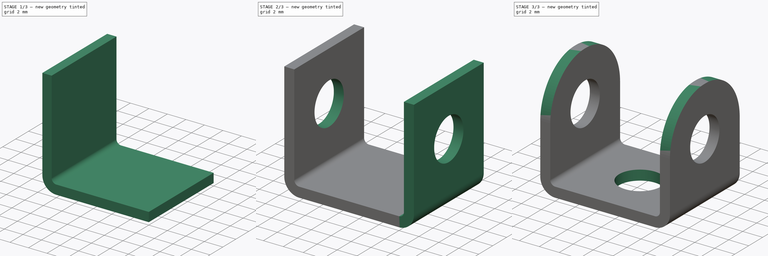
[diagram: build sequence overview — one tinted view per stage of 3, left to right]
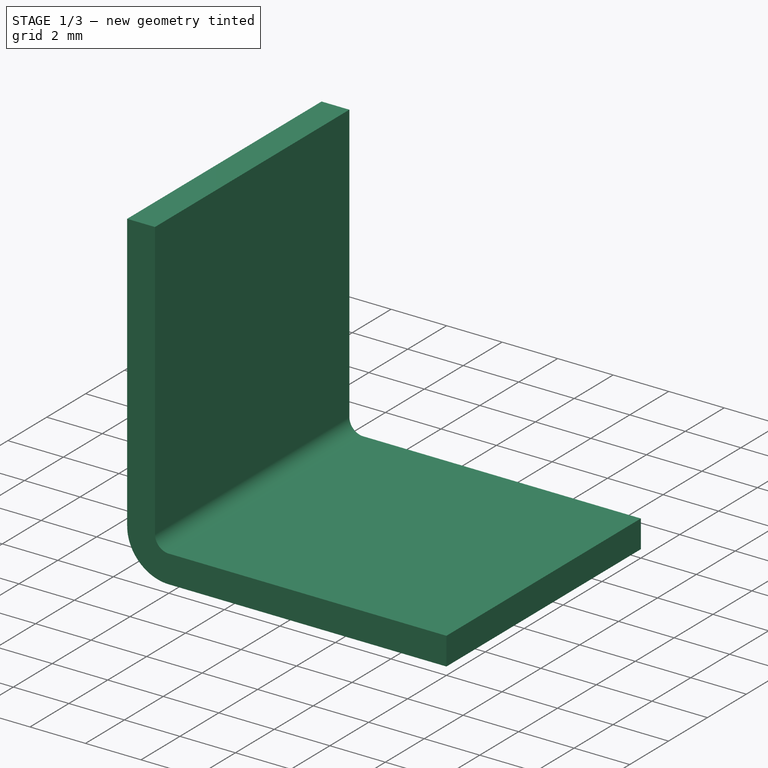
[diagram: stage 1 of 3 — iso view after this stage's code; geometry added in this stage tinted green]
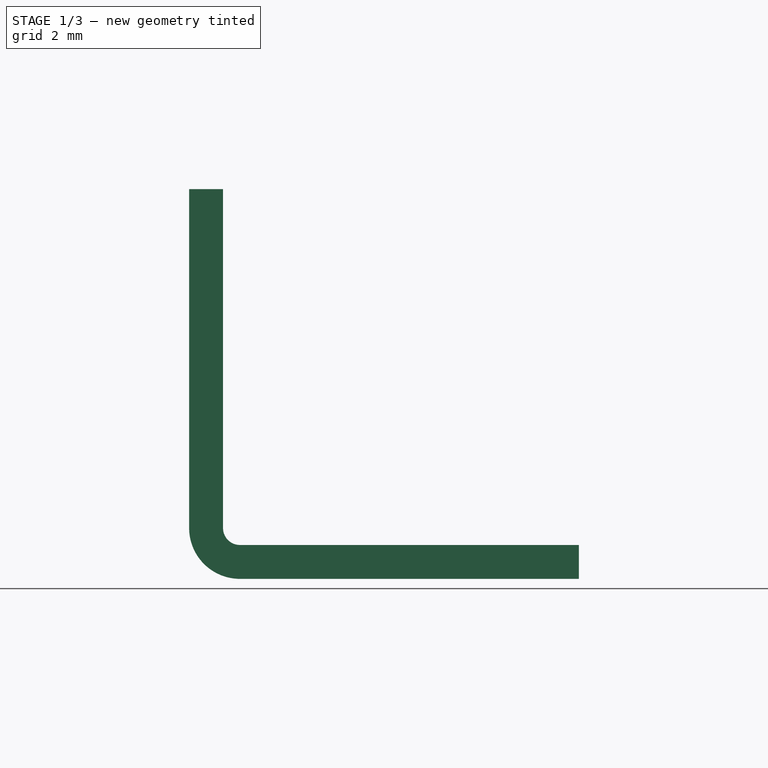
[diagram: stage 1 of 3 — front view after this stage's code; geometry added in this stage tinted green]
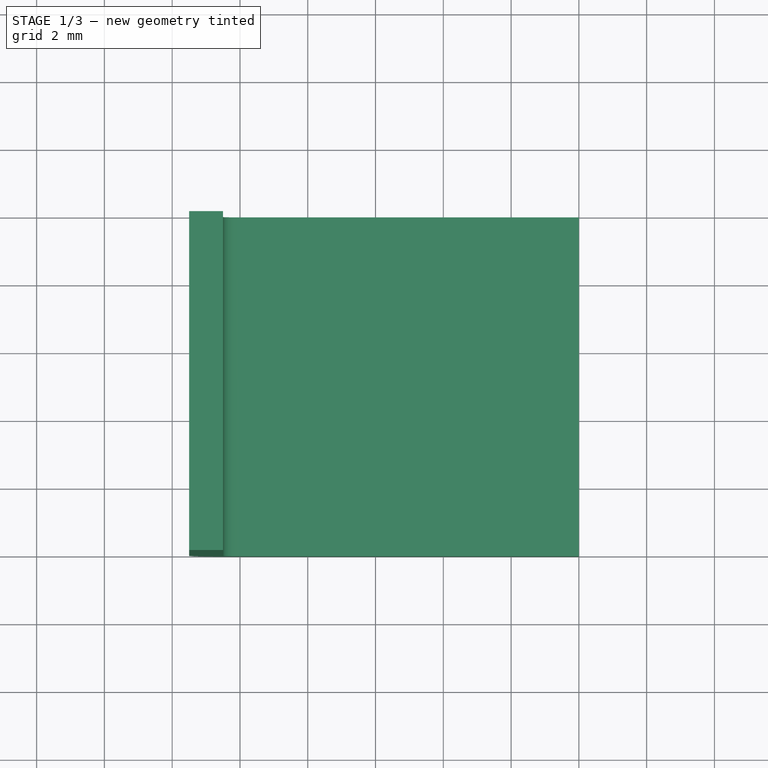
[diagram: stage 1 of 3 — top view after this stage's code; geometry added in this stage tinted green]
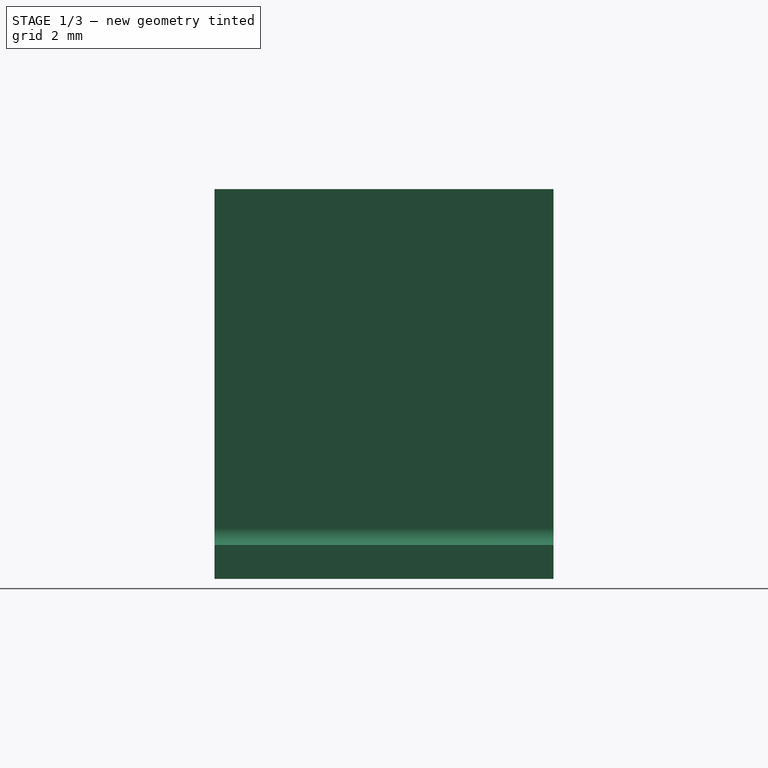
[diagram: stage 1 of 3 — right view after this stage's code; geometry added in this stage tinted green]
FCSTD DOCUMENT  (FreeCAD 0.16RUnknown)
Label: skoba_1_1_1_v2
License: All rights reserved
LicenseURL: http://en.wikipedia.org/wiki/All_rights_reserved
objects: Sketcher::SketchObject×3, Part::FeaturePython×2, PartDesign::Pocket×2, Drawing::FeatureViewPart×2, PartDesign::Pad×1, PartDesign::Fillet×1, Part::Feature×1, Drawing::FeaturePage×1
note: 13 computed .brp shape members not serialized (recipe doc carries the construction recipe); baked Part::Feature solids carry a one-line shape summary decoded from their .brp

FEATURE [Sketcher::SketchObject] Sketch
  sketch-geometry (4):
    g0: LineSegment StartX=0 StartY=10 StartZ=0 EndX=10 EndY=10 EndZ=0
    g1: LineSegment StartX=10 StartY=10 StartZ=0 EndX=10 EndY=0 EndZ=0
    g2: LineSegment StartX=10 StartY=0 StartZ=0 EndX=0 EndY=0 EndZ=0
    g3: LineSegment StartX=0 StartY=0 StartZ=0 EndX=0 EndY=10 EndZ=0
  constraints (11):
    c: Coincident(g0,g1)
    c: Coincident(g1,g2)
    c: Coincident(g2,g3)
    c: Coincident(g3,g0)
    c: Horizontal(g0)
    c: Horizontal(g2)
    c: Vertical(g1)
    c: Vertical(g3)
    c: DistanceX(g0,g0) = 10
    c: DistanceY(g3,g3) = 10
    c: Coincident(g2,g-1)
FEATURE [PartDesign::Pad] Pad
  Length = 1
  Length2 = 100
  Sketch = -> Sketch
  Type = 0
FEATURE [Part::FeaturePython] Bend  # WARN: FeaturePython — macro-defined, semantics opaque (R4)
  angle = 90
  baseObject = -> Pad [Face4]
  gap1 = 0
  gap2 = 0
  invert = false
  length = 10
  radius = 0.5
  reliefd = 1
  reliefw = 0.5
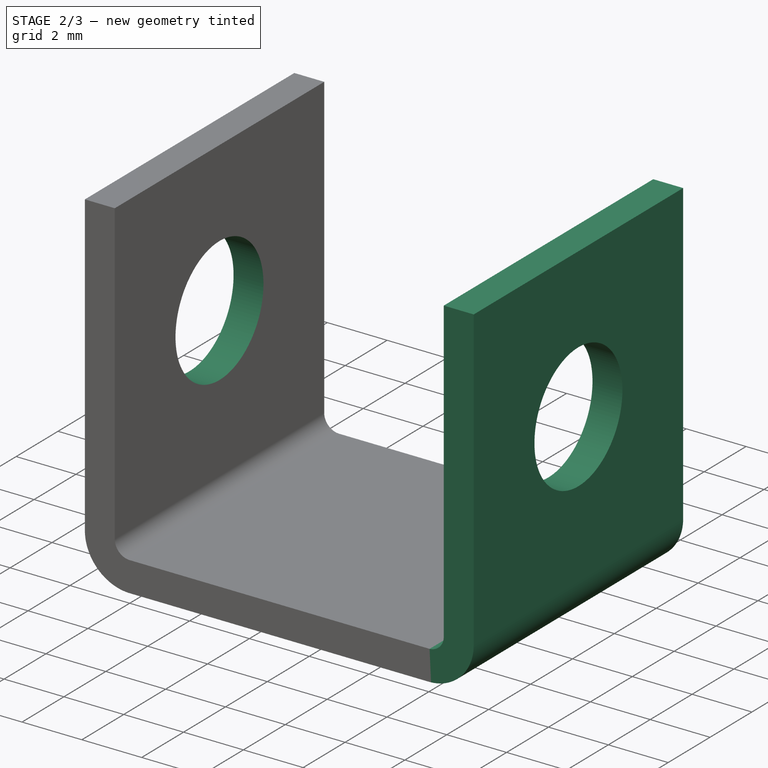
[diagram: stage 2 of 3 — iso view after this stage's code; geometry added in this stage tinted green]
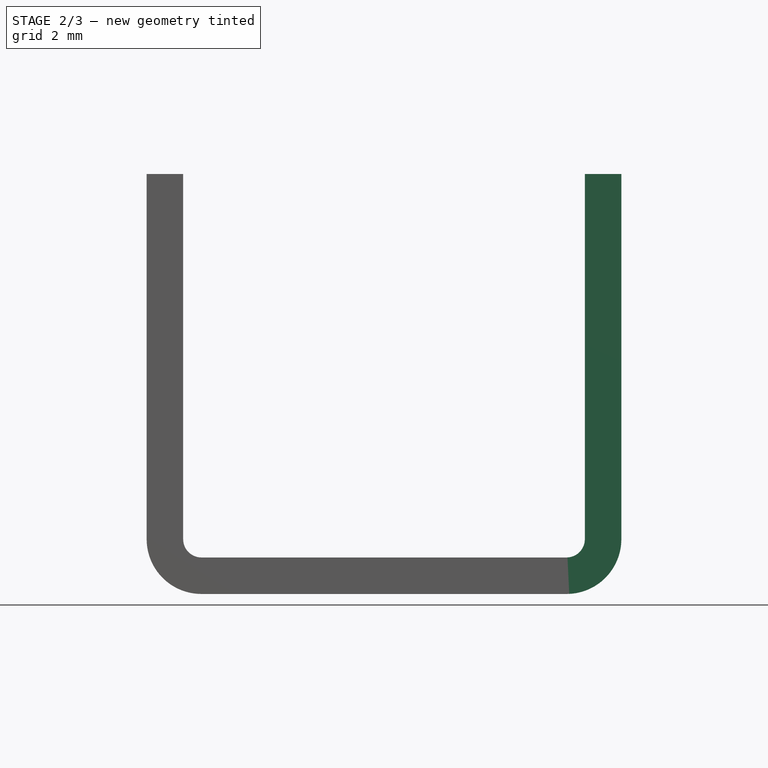
[diagram: stage 2 of 3 — front view after this stage's code; geometry added in this stage tinted green]
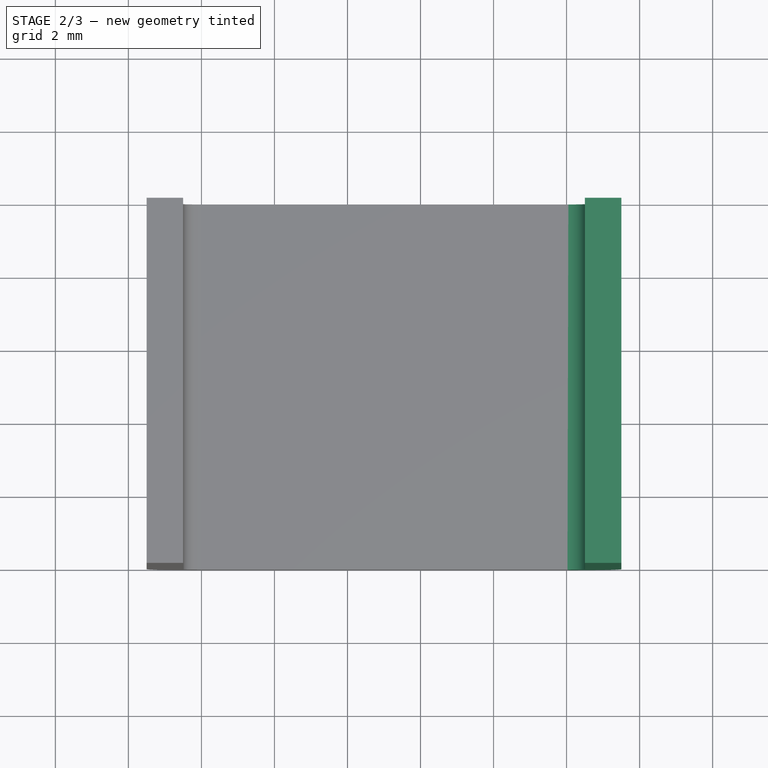
[diagram: stage 2 of 3 — top view after this stage's code; geometry added in this stage tinted green]
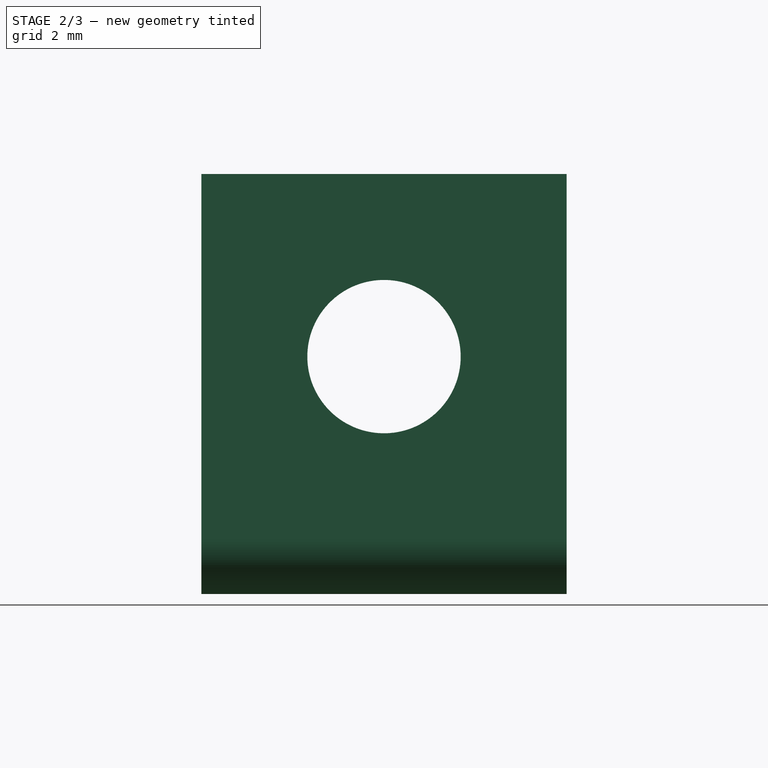
[diagram: stage 2 of 3 — right view after this stage's code; geometry added in this stage tinted green]
FEATURE [Part::FeaturePython] Bend001  # WARN: FeaturePython — macro-defined, semantics opaque (R4)
  angle = 90
  baseObject = -> Bend [Face14]
  gap1 = 0
  gap2 = 0
  invert = false
  length = 10
  radius = 0.5
  reliefd = 1
  reliefw = 0.5
FEATURE [Sketcher::SketchObject] Sketch001
  ExternalGeometry = -> [Bend001]
  Placement = pos=(-1.5,0,0) rot=(0.57735,-0.57735,-0.57735;2.0944rad)
  Support = -> Bend001 [Face20]
  sketch-geometry (1):
    g0: Circle CenterX=-5 CenterY=6.5 CenterZ=0 NormalX=0 NormalY=0 NormalZ=1 Radius=2.1
  constraints (3):
    c: Radius(g0) = 2.1
    c: DistanceY(g0,g-3) = 5
    c: DistanceX(g-3,g0) = 5
FEATURE [PartDesign::Pocket] Pocket
  Length = 5
  Sketch = -> Sketch001
  Type = 1
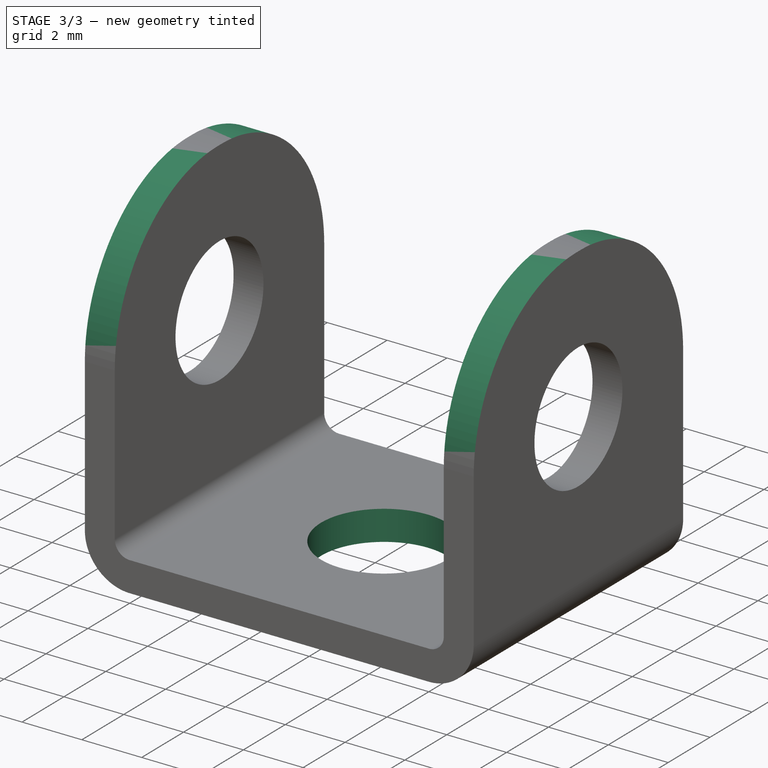
[diagram: stage 3 of 3 — iso view after this stage's code; geometry added in this stage tinted green]
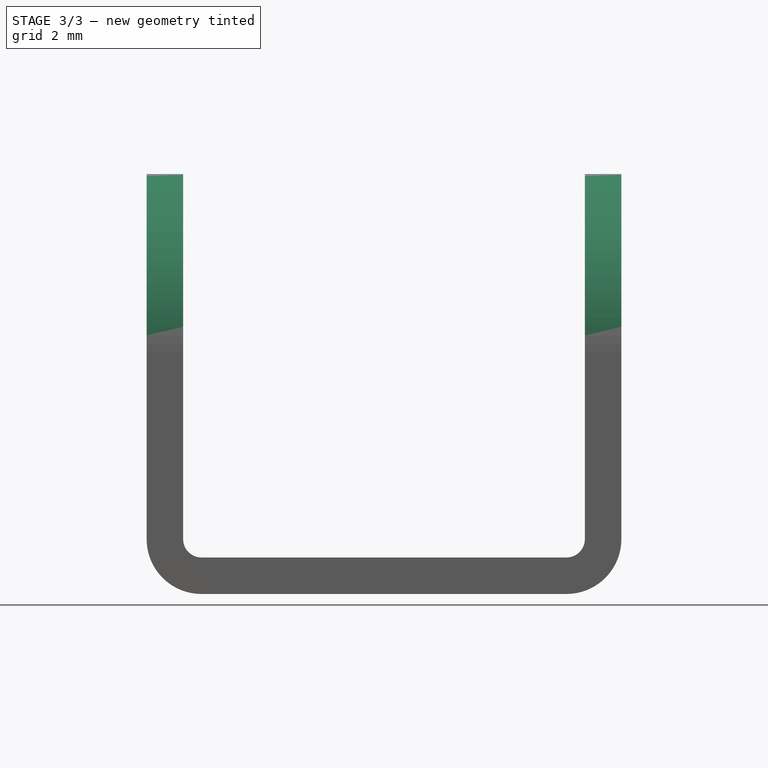
[diagram: stage 3 of 3 — front view after this stage's code; geometry added in this stage tinted green]
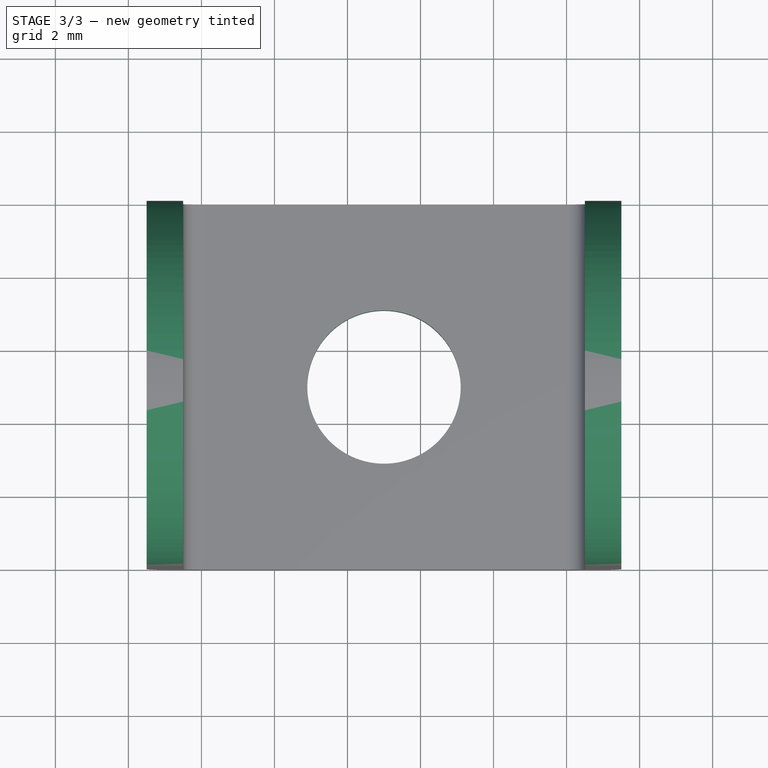
[diagram: stage 3 of 3 — top view after this stage's code; geometry added in this stage tinted green]
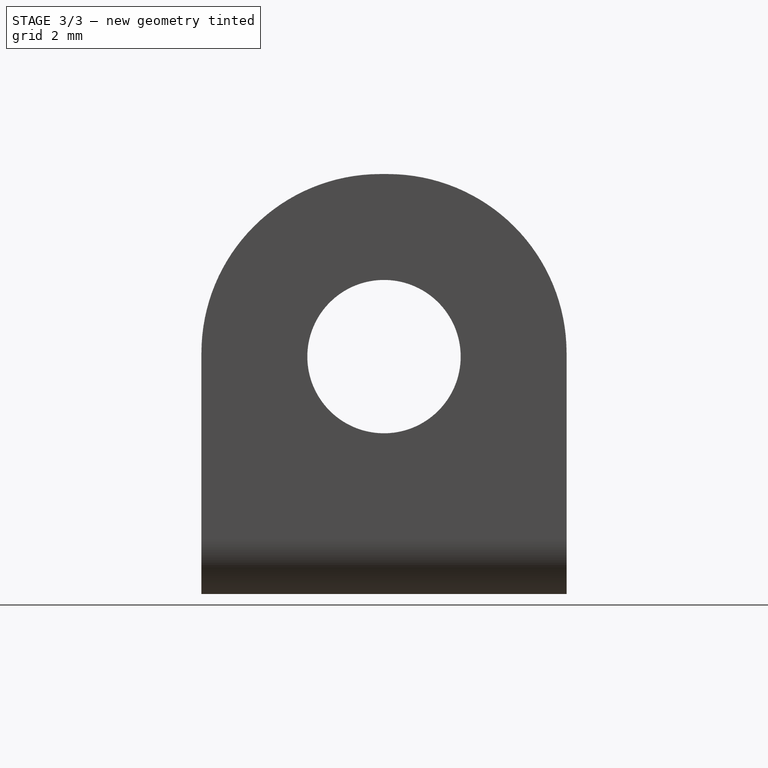
[diagram: stage 3 of 3 — right view after this stage's code; geometry added in this stage tinted green]
FEATURE [Sketcher::SketchObject] Sketch002
  Placement = pos=(0,0,0) rot=(1,0,0;3.14159rad)
  Support = -> Pocket [Face7]
  sketch-geometry (1):
    g0: Circle CenterX=5 CenterY=-5 CenterZ=0 NormalX=0 NormalY=0 NormalZ=1 Radius=2.1
  constraints (3):
    c: Radius(g0) = 2.1
    c: DistanceX(g-1,g0) = 5
    c: DistanceY(g0,g-1) = 5
FEATURE [PartDesign::Pocket] Pocket001
  Length = 5
  Sketch = -> Sketch002
  Type = 0
FEATURE [PartDesign::Fillet] Fillet
  Base = -> Pocket001 [Edge10,Edge22,Edge2,Edge1]
  Radius = 4.9
FEATURE [Part::Feature] Unfold
  shape: bbox 32.36 x 10 x 1 mm, 29 faces (baked)
FEATURE [Drawing::FeatureViewPart] Ortho  label="Ortho_0_0"
  Direction = (1,0,0)
  HiddenWidth = 0.15
  LineWidth = 0.35
  Rotation = -90
  ShowHiddenLines = false
  ShowSmoothLines = false
  Source = -> Unfold
  Tolerance = 0.05
  ViewResult = <g id="Ortho_0_0"\n   transform="rotate(-90,143.5,534.054) translate(143.5,534.054) scale(1,1)"\n  >\n<g   stroke="rgb(0, 0, 0)"\n   stroke-width="0.35"\n   stroke-linecap="butt"\n   stroke-linejoin="miter"\n   fill="none"\n   transform="scale(1,-1)"\n  >\n<path d="M1,-5.1 L1,-5.64863  L1,-6.19035  L1,-6.71837  L1,-7.22603  L1,-7.70696  L1,-8.1551  L1,-8.56482  L1,-8.93097  L1,-9.24895  L1,-9.51475  L1,-9.72503  L1,-9.87715  L1,-9.96919  L1,-10 " /><path id= "2" d=" M 1 -5.1 L 1 -4.9 " />\n<path d="M1,-4.9 L1,-4.35137  L1,-3.80965  L1,-3.28163  L1,-2.77397  L1,-2.29304  L1,-1.8449  L1,-1.43518  L1,-1.06903  L1,-0.751051  L1,-0.485253  L1,-0.274972  L1,-0.122853  L1,-0.0308102  L1,8.88178e-16 " /><path d="M1,-4.9 L1,-4.91428  L1,-4.92856  L1,-4.94284  L1,-4.95713  L1,-4.97142  L1,-4.98571  L1,-5  L1,-5.01429  L1,-5.02858  L1,-5.04287  L1,-5.05716  L1,-5.07144  L1,-5.08572  L1,-5.1 " /><path id= "5" d=" M -5.66214e-16 -10 L 1 -10 " />\n<path d="M0,-5.1 L0,-5.64863  L0,-6.19035  L0,-6.71837  L0,-7.22603  L0,-7.70696  L0,-8.1551  L0,-8.56482  L0,-8.93097  L0,-9.24895  L0,-9.51475  L0,-9.72503  L0,-9.87715  L0,-9.96919  L0,-10 " /><path id= "7" d=" M 0 -5.1 L 0 -4.9 " />\n<path d="M0,-4.9 L0,-4.35137  L0,-3.80965  L0,-3.28163  L0,-2.77397  L0,-2.29304  L0,-1.8449  L0,-1.43518  L0,-1.06903  L0,-0.751051  L0,-0.485253  L0,-0.274972  L0,-0.122853  L0,-0.0308102  L0,8.88178e-16 " /><path id= "9" d=" M 0 -5.1 L 1 -5.1 " />\n<path id= "10" d=" M 0 -4.9 L 1 -4.9 " />\n<path id= "11" d=" M -5.66214e-16 8.88178e-16 L 1 8.88178e-16 " />\n</g>\n</g>
  Visible = true
  X = 143.5
  Y = 534.054
FEATURE [Drawing::FeatureViewPart] Ortho001  label="Ortho_0_1"
  Direction = (0,0,1)
  HiddenWidth = 0.15
  LineWidth = 0.35
  Rotation = 90
  ShowHiddenLines = false
  ShowSmoothLines = false
  Source = -> Unfold
  Tolerance = 0.05
  ViewResult = <g id="Ortho_0_1"\n   transform="rotate(90,143.5,100) translate(143.5,100) scale(1,1)"\n  >\n<g   stroke="rgb(0, 0, 0)"\n   stroke-width="0.35"\n   stroke-linecap="butt"\n   stroke-linejoin="miter"\n   fill="none"\n   transform="scale(1,-1)"\n  >\n<path id= "1" d=" M -1.17769 0 L -6.27769 0 " />\n<path d="M-6.27769 -8.88178e-16 A4.9 4.9 0 0 0 -11.1777 4.9" /><path id= "3" d=" M -1.17769 0 L -1.17769 10 " />\n<path id= "4" d=" M -11.1777 4.9 L -11.1777 5.1 " />\n<path id= "5" d=" M -1.17769 10 L -6.27769 10 " />\n<path d="M-6.27769 10 A4.9 4.9 0 0 1 -11.1777 5.1" /><circle cx ="-6.17769" cy ="5" r ="2.1" /><path id= "8" d=" M 0 0 L 0 10 " />\n<path id= "9" d=" M 0 0 L -1.17769 0 " />\n<path id= "10" d=" M 0 10 L -1.17769 10 " />\n<path id= "11" d=" M 0 10 L 0 0 " />\n<path id= "12" d=" M 0 10 L 10 10 " />\n<path id= "13" d=" M 10 10 L 10 0 " />\n<path id= "14" d=" M 10 0 L 0 0 " />\n<circle cx ="5" cy ="5" r ="2.1" /><path id= "16" d=" M 11.1777 10 L 16.2777 10 " />\n<path d="M21.1777 5.1 A4.9 4.9 0 0 1 16.2777 10" /><path id= "18" d=" M 11.1777 10 L 11.1777 0 " />\n<path id= "19" d=" M 21.1777 5.1 L 21.1777 4.9 " />\n<path id= "20" d=" M 11.1777 0 L 16.2777 0 " />\n<path d="M21.1777 4.9 A4.9 4.9 0 0 0 16.2777 -8.88178e-16" /><circle cx ="16.1777" cy ="5" r ="2.1" /><path id= "23" d=" M 10 10 L 11.1777 10 " />\n<path id= "24" d=" M 10 0 L 11.1777 0 " />\n</g>\n</g>
  Visible = true
  X = 143.5
  Y = 100
FEATURE [Drawing::FeaturePage] Page
  Group = -> [Ortho,Ortho001]
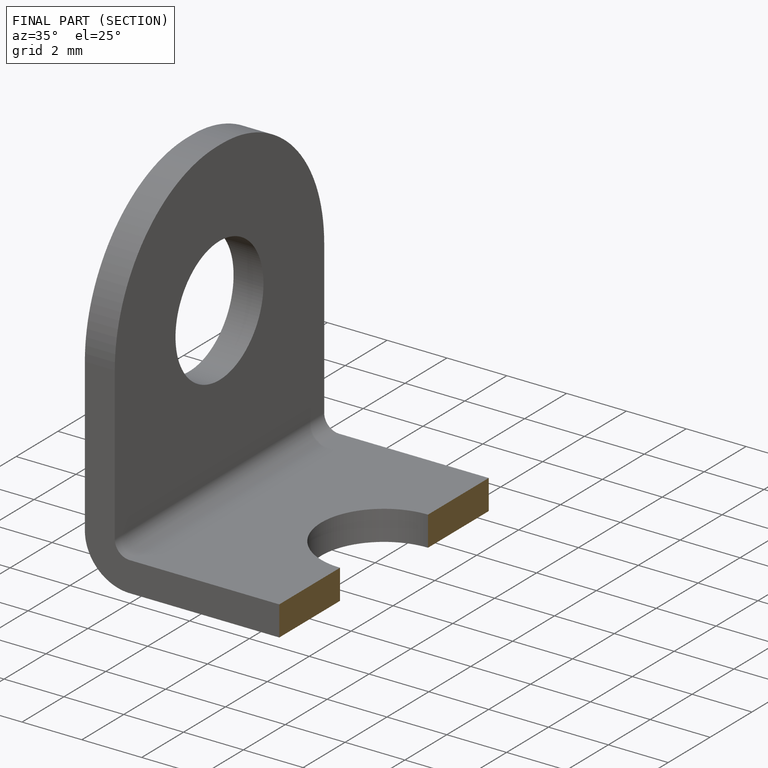
[diagram: finished part — half-section view (interior)]
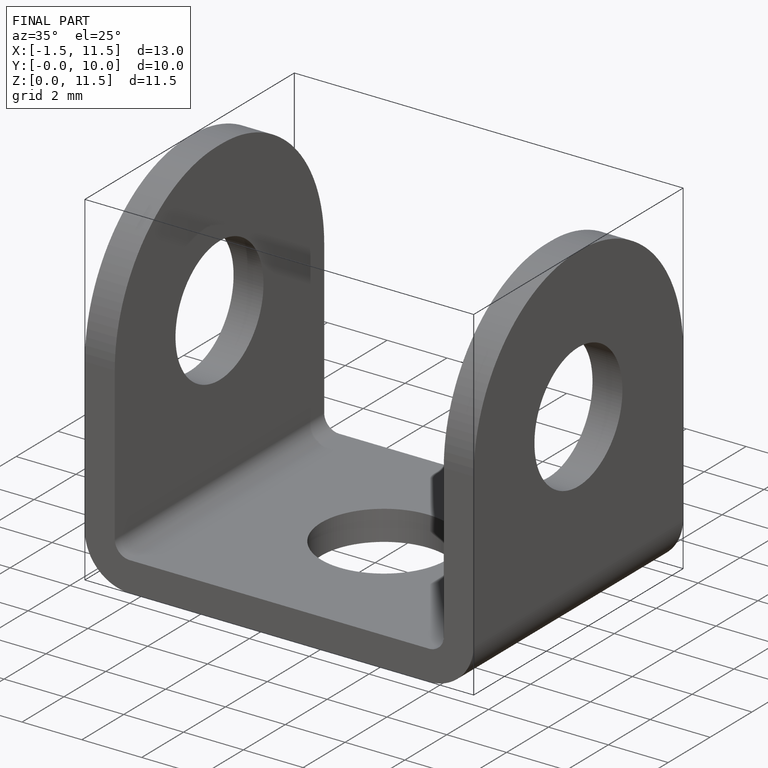
[diagram: finished part — iso view with bounding-box wireframe]
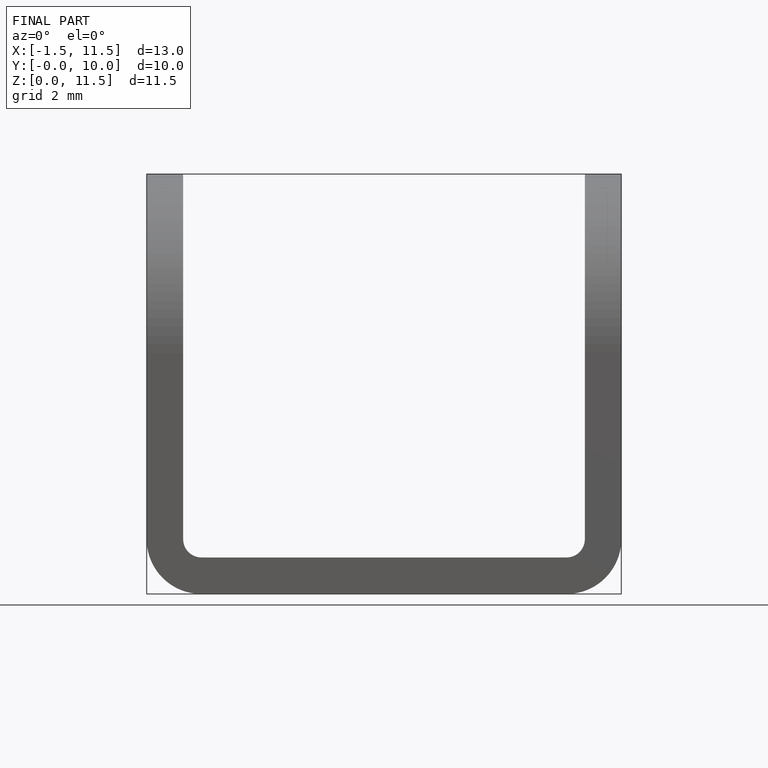
[diagram: finished part — front view with bounding-box wireframe]
